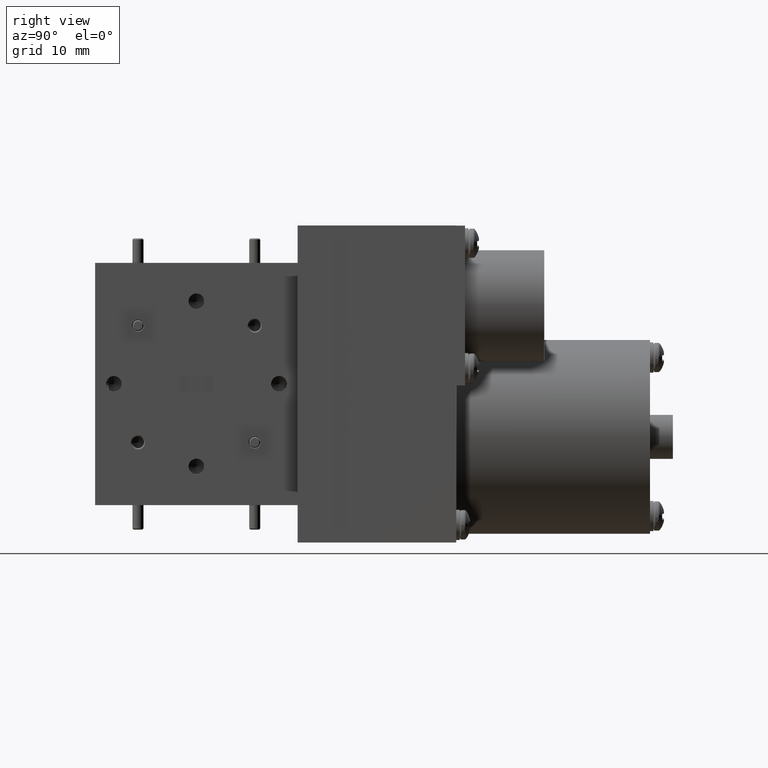
[diagram: clean part render]
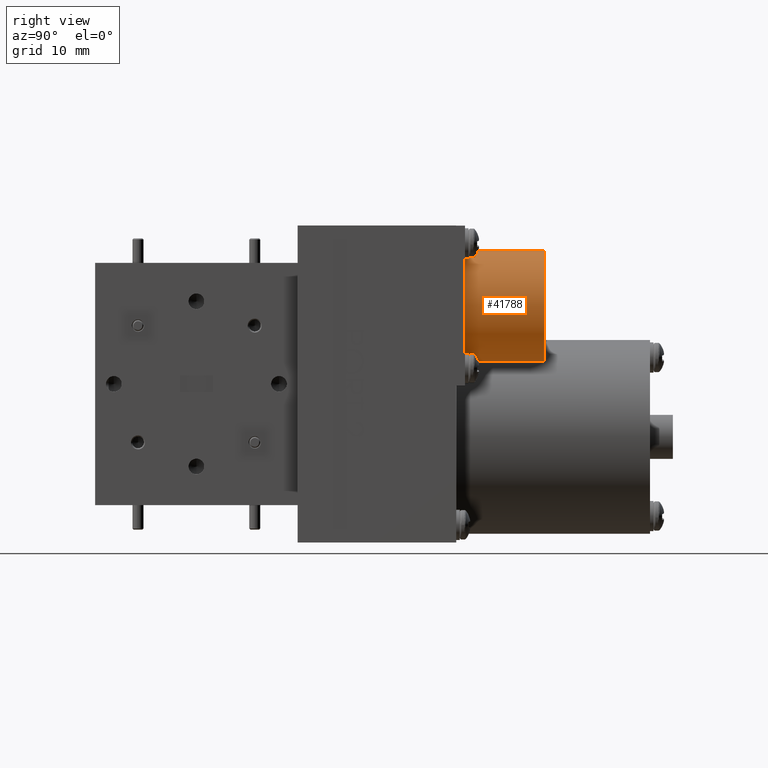
[diagram: same view with one face highlighted and labeled with its STEP entity id]
A machine part, right view. The second image highlights one B-rep face of the part: STEP entity #41788.
In plain terms, the highlighted cylindrical surface (partial cylindrical patch) has radius 8.001 mm, axis along (-0, -1, -0).
Its self-contained STEP definition (entity closure, byte-faithful):
#134 = CARTESIAN_POINT ( 'NONE',  ( 0.4445000000000000100, 2.549999999999999800, 0.1295000000000002800 ) ) ;
#321 = CARTESIAN_POINT ( 'NONE',  ( 0.4445000000000000600, 2.549999999999999800, 0.7595000000000001700 ) ) ;
#438 = EDGE_CURVE ( 'NONE', #40076, #31772, #18158, .T. ) ;
#2282 = CARTESIAN_POINT ( 'NONE',  ( 0.4445000000000000100, 2.549999999999999800, 0.1295000000000002800 ) ) ;
#3094 = AXIS2_PLACEMENT_3D ( 'NONE', #34211, #4890, #30675 ) ;
#3869 = EDGE_CURVE ( 'NONE', #33846, #31772, #38264, .T. ) ;
#4834 = FACE_OUTER_BOUND ( 'NONE', #36111, .T. ) ;
#4890 = DIRECTION ( 'NONE',  ( -0.0000000000000000000, -1.000000000000000000, -0.0000000000000000000 ) ) ;
#6188 = DIRECTION ( 'NONE',  ( -0.0000000000000000000, 1.000000000000000000, -0.0000000000000000000 ) ) ;
#8667 = ORIENTED_EDGE ( 'NONE', *, *, #3869, .F. ) ;
#8805 = VECTOR ( 'NONE', #12443, 39.37007874015748100 ) ;
#9417 = CARTESIAN_POINT ( 'NONE',  ( 0.4445000000000000100, 2.099999999999999600, 0.4445000000000002300 ) ) ;
#12443 = DIRECTION ( 'NONE',  ( -0.0000000000000000000, -1.000000000000000000, -0.0000000000000000000 ) ) ;
#15408 = CARTESIAN_POINT ( 'NONE',  ( 0.4445000000000000100, 2.099999999999999600, 0.1295000000000002800 ) ) ;
#16963 = CARTESIAN_POINT ( 'NONE',  ( 0.4445000000000000100, 2.549999999999999800, 0.4445000000000002300 ) ) ;
#17254 = DIRECTION ( 'NONE',  ( 0.0000000000000000000, 1.000000000000000000, 0.0000000000000000000 ) ) ;
#18158 = CIRCLE ( 'NONE', #26967, 0.3149999999999998900 ) ;
#20533 = EDGE_CURVE ( 'NONE', #30822, #33846, #27009, .T. ) ;
#21002 = CARTESIAN_POINT ( 'NONE',  ( 0.4445000000000000600, 2.099999999999999600, 0.7595000000000001700 ) ) ;
#26967 = AXIS2_PLACEMENT_3D ( 'NONE', #9417, #6188, #32103 ) ;
#27009 = CIRCLE ( 'NONE', #28814, 0.3150000000000000000 ) ;
#28814 = AXIS2_PLACEMENT_3D ( 'NONE', #16963, #17254, #29746 ) ;
#29746 = DIRECTION ( 'NONE',  ( 0.0000000000000000000, 0.0000000000000000000, 1.000000000000000000 ) ) ;
#30675 = DIRECTION ( 'NONE',  ( 0.0000000000000000000, 0.0000000000000000000, -1.000000000000000000 ) ) ;
#30686 = CYLINDRICAL_SURFACE ( 'NONE', #3094, 0.3149999999999998900 ) ;
#30822 = VERTEX_POINT ( 'NONE', #38901 ) ;
#31208 = ORIENTED_EDGE ( 'NONE', *, *, #20533, .F. ) ;
#31772 = VERTEX_POINT ( 'NONE', #15408 ) ;
#32103 = DIRECTION ( 'NONE',  ( 0.0000000000000000000, 0.0000000000000000000, -1.000000000000000000 ) ) ;
#33348 = VECTOR ( 'NONE', #39458, 39.37007874015748100 ) ;
#33846 = VERTEX_POINT ( 'NONE', #134 ) ;
#34211 = CARTESIAN_POINT ( 'NONE',  ( 0.4445000000000000100, 2.549999999999999800, 0.4445000000000002300 ) ) ;
#35843 = EDGE_CURVE ( 'NONE', #30822, #40076, #41987, .T. ) ;
#35856 = ORIENTED_EDGE ( 'NONE', *, *, #438, .T. ) ;
#36111 = EDGE_LOOP ( 'NONE', ( #31208, #40005, #35856, #8667 ) ) ;
#38264 = LINE ( 'NONE', #2282, #8805 ) ;
#38901 = CARTESIAN_POINT ( 'NONE',  ( 0.4445000000000000600, 2.549999999999999800, 0.7595000000000001700 ) ) ;
#39458 = DIRECTION ( 'NONE',  ( -0.0000000000000000000, -1.000000000000000000, -0.0000000000000000000 ) ) ;
#40005 = ORIENTED_EDGE ( 'NONE', *, *, #35843, .T. ) ;
#40076 = VERTEX_POINT ( 'NONE', #21002 ) ;
#41788 = ADVANCED_FACE ( 'NONE', ( #4834 ), #30686, .T. ) ;
#41987 = LINE ( 'NONE', #321, #33348 ) ;